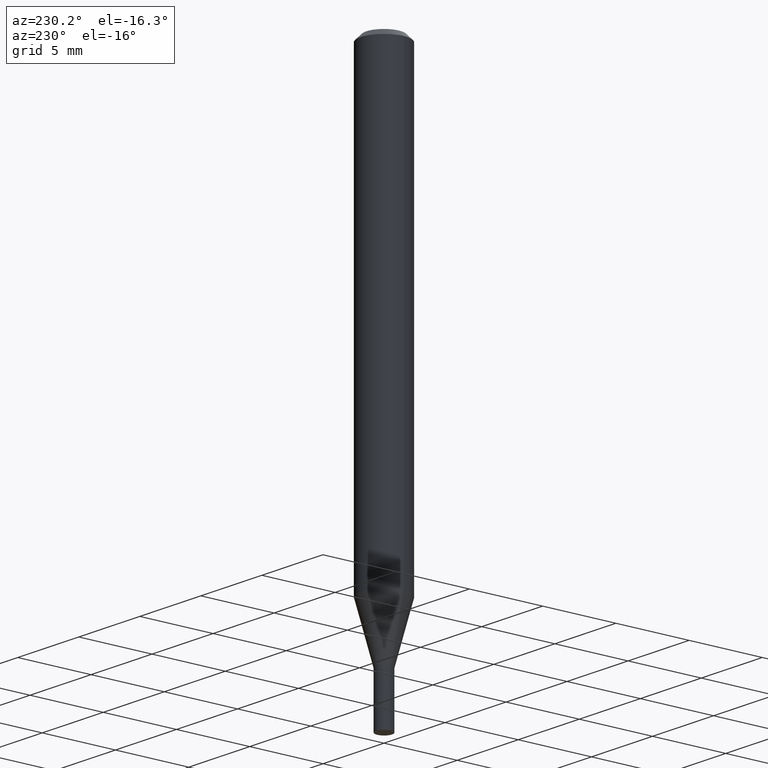
[diagram: clean part render]
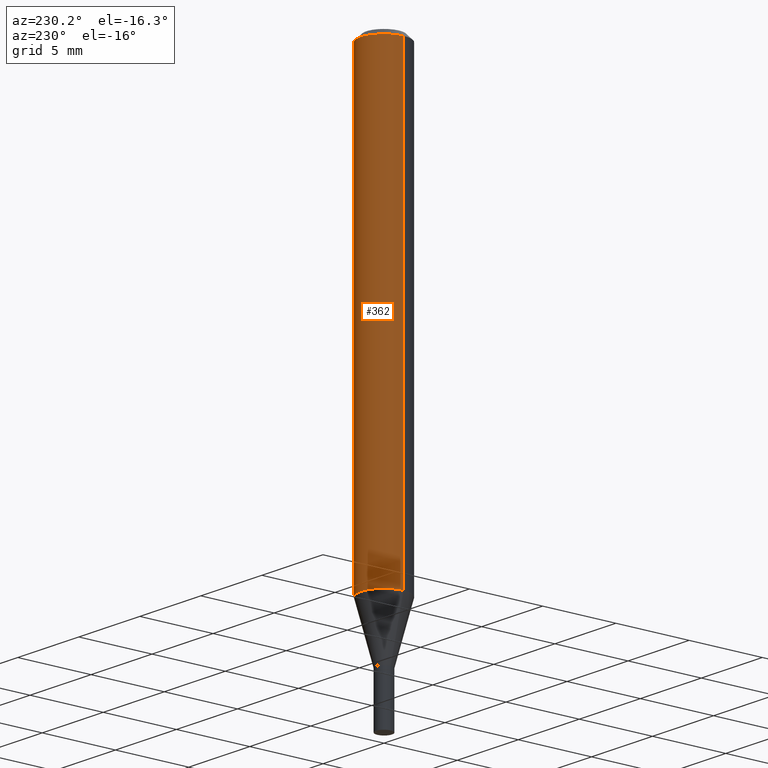
[diagram: same view with one face highlighted and labeled with its STEP entity id]
A machine part, auxiliary view. The second image highlights one B-rep face of the part: STEP entity #362.
In plain terms, the highlighted cylindrical surface (edge-blend (fillet) strip) has radius 1.5875 mm, axis along (-0, 0, 1).
Its self-contained STEP definition (entity closure, byte-faithful):
#23 = CARTESIAN_POINT ( 'NONE',  ( 0.06249999999999999306, -4.654095453761023408E-15, -1.207985916889676270 ) ) ;
#27 = VECTOR ( 'NONE', #318, 39.37007874015748143 ) ;
#38 = DIRECTION ( 'NONE',  ( -2.445468806185136597E-29, 3.491481338843145583E-15, 1.000000000000000000 ) ) ;
#58 = LINE ( 'NONE', #182, #27 ) ;
#59 = AXIS2_PLACEMENT_3D ( 'NONE', #364, #38, #325 ) ;
#72 = CYLINDRICAL_SURFACE ( 'NONE', #59, 0.06250000000000000000 ) ;
#74 = VERTEX_POINT ( 'NONE', #355 ) ;
#83 = VERTEX_POINT ( 'NONE', #147 ) ;
#112 = DIRECTION ( 'NONE',  ( 1.000000000000000000, -6.982962677686262766E-15, 0.000000000000000000 ) ) ;
#146 = LINE ( 'NONE', #219, #435 ) ;
#147 = CARTESIAN_POINT ( 'NONE',  ( -0.06250000000000000000, -1.690927043394076990E-15, -0.01499999999999999944 ) ) ;
#154 = ORIENTED_EDGE ( 'NONE', *, *, #380, .F. ) ;
#159 = CIRCLE ( 'NONE', #448, 0.06250000000000000000 ) ;
#161 = CARTESIAN_POINT ( 'NONE',  ( -0.06249999999999999306, -3.773571076555568334E-15, -1.207985916889676270 ) ) ;
#163 = ORIENTED_EDGE ( 'NONE', *, *, #350, .F. ) ;
#176 = EDGE_CURVE ( 'NONE', #275, #83, #58, .T. ) ;
#182 = CARTESIAN_POINT ( 'NONE',  ( -0.06250000000000000000, 4.440892098500626162E-16, -3.074334431409316114E-30 ) ) ;
#208 = EDGE_LOOP ( 'NONE', ( #213, #259, #154, #163 ) ) ;
#213 = ORIENTED_EDGE ( 'NONE', *, *, #376, .T. ) ;
#219 = CARTESIAN_POINT ( 'NONE',  ( 0.06250000000000000000, -4.364351673553916694E-16, 3.047610484872459871E-30 ) ) ;
#249 = FACE_OUTER_BOUND ( 'NONE', #208, .T. ) ;
#253 = DIRECTION ( 'NONE',  ( -2.445468806185136597E-29, 3.491481338843145583E-15, 1.000000000000000000 ) ) ;
#259 = ORIENTED_EDGE ( 'NONE', *, *, #176, .T. ) ;
#274 = CIRCLE ( 'NONE', #400, 0.06250000000000000000 ) ;
#275 = VERTEX_POINT ( 'NONE', #161 ) ;
#283 = CARTESIAN_POINT ( 'NONE',  ( 2.954091878064654281E-29, -4.217660286405631739E-15, -1.207985916889676270 ) ) ;
#318 = DIRECTION ( 'NONE',  ( -2.445468806185136877E-29, 3.491481338843145188E-15, 1.000000000000000000 ) ) ;
#323 = VERTEX_POINT ( 'NONE', #23 ) ;
#325 = DIRECTION ( 'NONE',  ( 1.000000000000000000, -6.982962677686266711E-15, 4.876176775795935793E-29 ) ) ;
#350 = EDGE_CURVE ( 'NONE', #323, #74, #146, .T. ) ;
#355 = CARTESIAN_POINT ( 'NONE',  ( 0.06250000000000000000, -4.888073874380388472E-16, -0.01499999999999999944 ) ) ;
#362 = ADVANCED_FACE ( 'NONE', ( #249 ), #72, .T. ) ;
#364 = CARTESIAN_POINT ( 'NONE',  ( 0.000000000000000000, 0.000000000000000000, 0.000000000000000000 ) ) ;
#368 = DIRECTION ( 'NONE',  ( 1.000000000000000000, -6.982962677686266711E-15, 0.000000000000000000 ) ) ;
#376 = EDGE_CURVE ( 'NONE', #323, #275, #159, .T. ) ;
#380 = EDGE_CURVE ( 'NONE', #74, #83, #274, .T. ) ;
#400 = AXIS2_PLACEMENT_3D ( 'NONE', #402, #253, #368 ) ;
#402 = CARTESIAN_POINT ( 'NONE',  ( 3.668203209277705088E-31, -5.237222008264718399E-17, -0.01499999999999999944 ) ) ;
#433 = DIRECTION ( 'NONE',  ( -2.445468806185136597E-29, 3.491481338843145583E-15, 1.000000000000000000 ) ) ;
#435 = VECTOR ( 'NONE', #464, 39.37007874015748143 ) ;
#448 = AXIS2_PLACEMENT_3D ( 'NONE', #283, #433, #112 ) ;
#464 = DIRECTION ( 'NONE',  ( -2.445468806185136877E-29, 3.491481338843145188E-15, 1.000000000000000000 ) ) ;